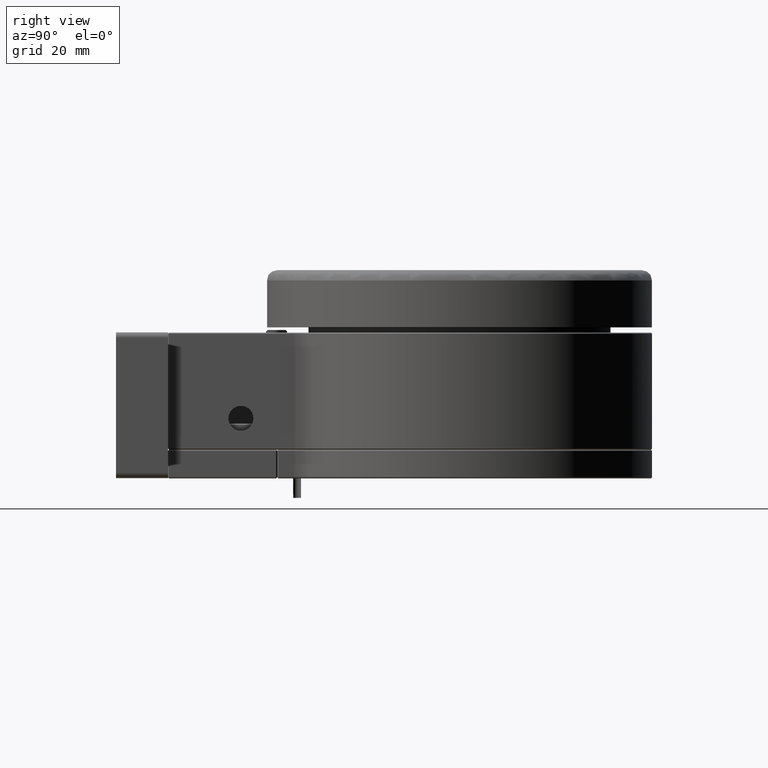
[diagram: clean part render]
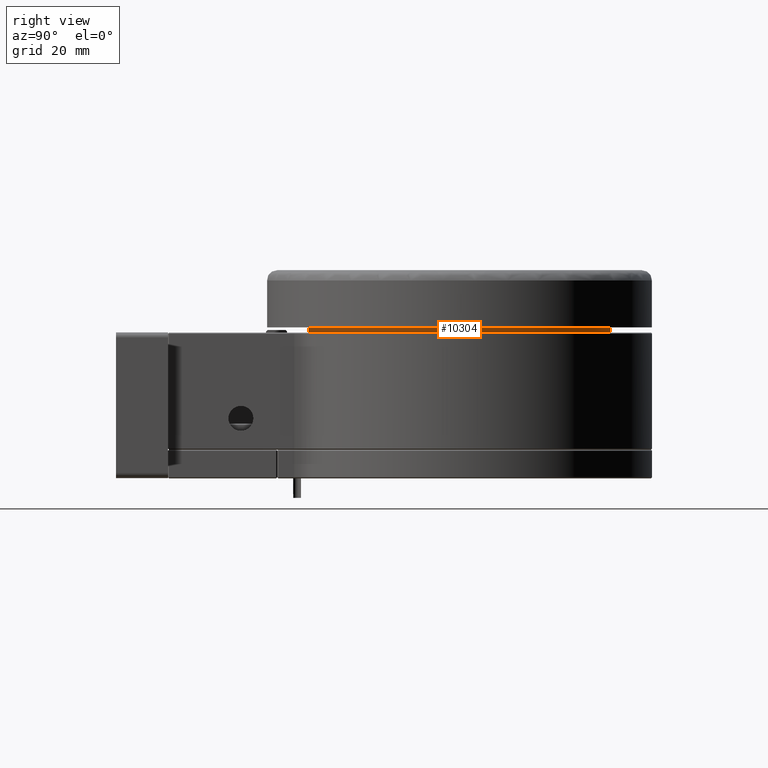
[diagram: same view with one face highlighted and labeled with its STEP entity id]
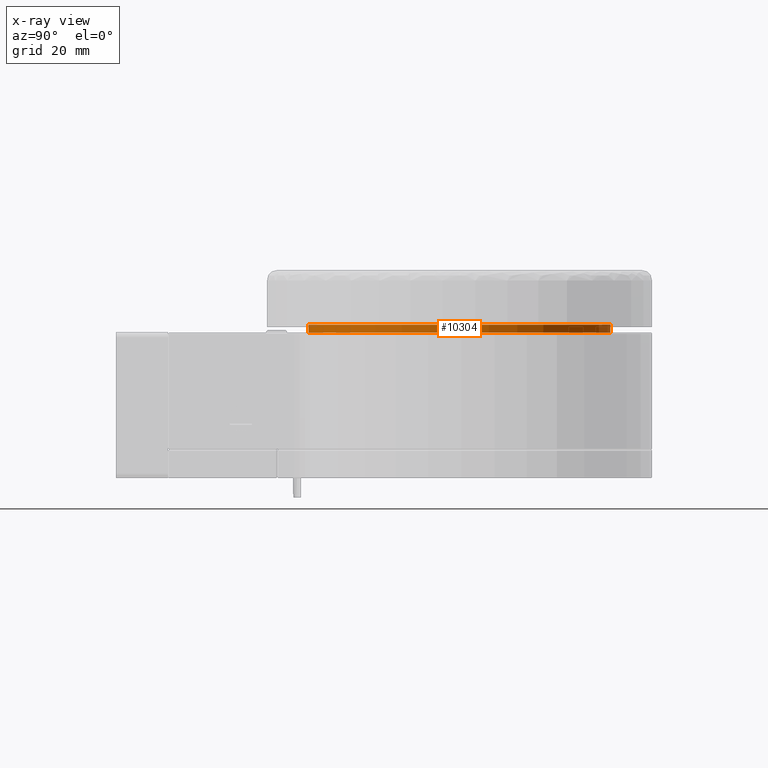
[diagram: x-ray of the same camera — body ghosted, the highlighted face saturated]
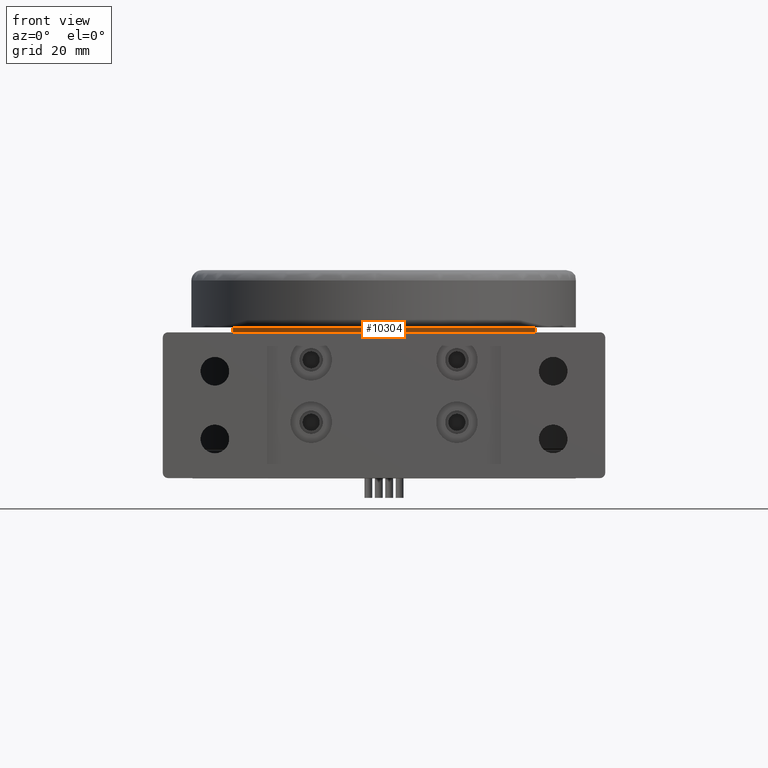
[diagram: same view with one face highlighted and labeled with its STEP entity id]
A machine part, right view. The second image highlights one B-rep face of the part: STEP entity #10304.
The next image is the same camera in x-ray: the body ghosted, the highlighted face saturated — about 2% of this face is hidden behind the body in this view.
A second angle (front view) of the same face is appended — the face is thin or edge-on in the first view.
In plain terms, the highlighted cylindrical surface (bore or boss wall) has radius 29 mm, axis along (0, -0, -1).
Its self-contained STEP definition (entity closure, byte-faithful):
#64 = CIRCLE ( 'NONE', #6880, 29.00000000000006750 ) ;
#559 = DIRECTION ( 'NONE',  ( 4.394855288948004209E-23, -4.163150519802294301E-24, -1.000000000000000000 ) ) ;
#1566 = DIRECTION ( 'NONE',  ( -1.000000000000000000, 2.392722035830073055E-16, 0.000000000000000000 ) ) ;
#1599 = CARTESIAN_POINT ( 'NONE',  ( -29.00000000000003908, 55.99999999999999289, 27.99999999999995737 ) ) ;
#1656 = ORIENTED_EDGE ( 'NONE', *, *, #10411, .T. ) ;
#1686 = DIRECTION ( 'NONE',  ( -1.000000000000000000, 2.392722035830073055E-16, 0.000000000000000000 ) ) ;
#2324 = CARTESIAN_POINT ( 'NONE',  ( 2.938187894027980214E-14, 55.99999999999998579, 27.99999999999995737 ) ) ;
#2460 = CARTESIAN_POINT ( 'NONE',  ( 2.938187887435697452E-14, 55.99999999999998579, 29.49999999999996092 ) ) ;
#3602 = VERTEX_POINT ( 'NONE', #1599 ) ;
#4140 = ORIENTED_EDGE ( 'NONE', *, *, #12146, .F. ) ;
#4190 = CIRCLE ( 'NONE', #5389, 29.00000000000006750 ) ;
#4211 = DIRECTION ( 'NONE',  ( 4.394855288948004209E-23, -4.163150519802294301E-24, -1.000000000000000000 ) ) ;
#4484 = AXIS2_PLACEMENT_3D ( 'NONE', #7453, #5333, #1566 ) ;
#4862 = VERTEX_POINT ( 'NONE', #7299 ) ;
#5333 = DIRECTION ( 'NONE',  ( 4.394855288948004209E-23, -4.163150519802294301E-24, -1.000000000000000000 ) ) ;
#5389 = AXIS2_PLACEMENT_3D ( 'NONE', #2324, #4211, #9842 ) ;
#6340 = EDGE_LOOP ( 'NONE', ( #1656 ) ) ;
#6390 = FACE_OUTER_BOUND ( 'NONE', #7730, .T. ) ;
#6880 = AXIS2_PLACEMENT_3D ( 'NONE', #2460, #559, #1686 ) ;
#7299 = CARTESIAN_POINT ( 'NONE',  ( -29.00000000000003908, 55.99999999999999289, 29.49999999999996092 ) ) ;
#7453 = CARTESIAN_POINT ( 'NONE',  ( 2.938187887435697452E-14, 55.99999999999998579, 29.49999999999996092 ) ) ;
#7730 = EDGE_LOOP ( 'NONE', ( #4140 ) ) ;
#9323 = FACE_OUTER_BOUND ( 'NONE', #6340, .T. ) ;
#9842 = DIRECTION ( 'NONE',  ( -1.000000000000000000, 2.392722035830073055E-16, 0.000000000000000000 ) ) ;
#10304 = ADVANCED_FACE ( 'NONE', ( #9323, #6390 ), #10329, .T. ) ;
#10329 = CYLINDRICAL_SURFACE ( 'NONE', #4484, 29.00000000000006750 ) ;
#10411 = EDGE_CURVE ( 'NONE', #4862, #4862, #64, .T. ) ;
#12146 = EDGE_CURVE ( 'NONE', #3602, #3602, #4190, .T. ) ;